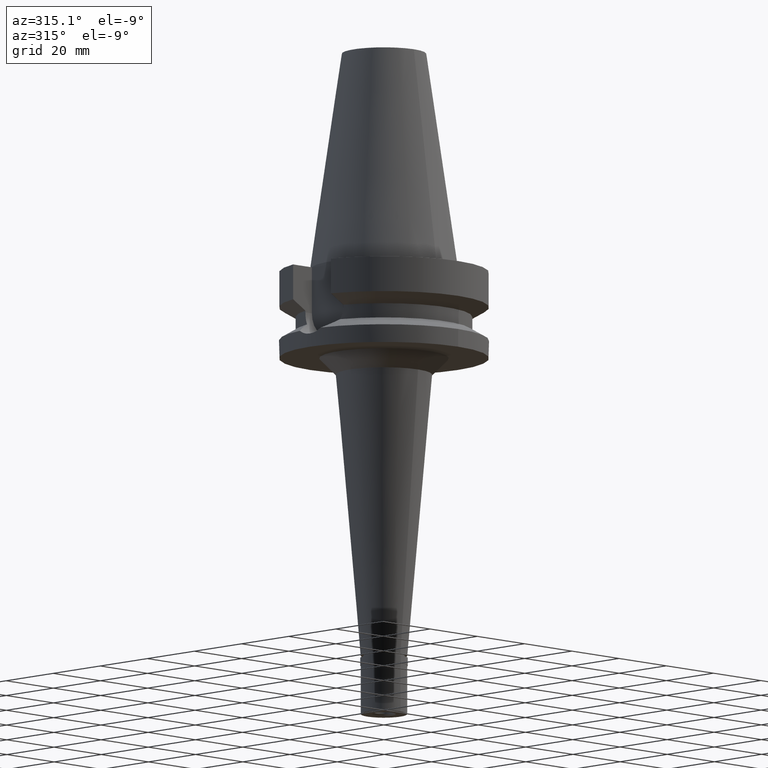
[diagram: clean part render]
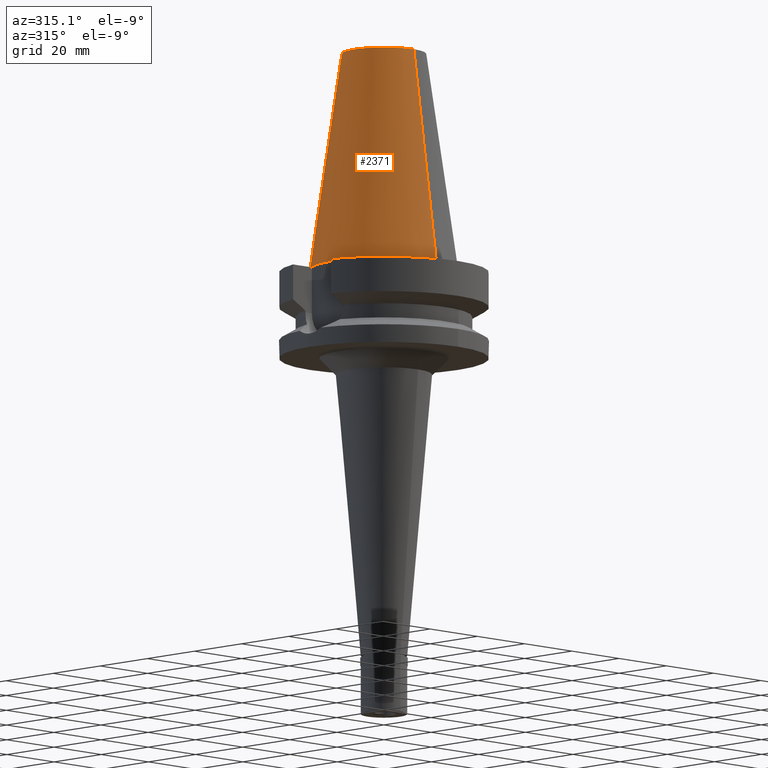
[diagram: same view with one face highlighted and labeled with its STEP entity id]
A machine part, auxiliary view. The second image highlights one B-rep face of the part: STEP entity #2371.
In plain terms, the highlighted conical surface has half-angle 8.297 deg.
Its self-contained STEP definition (entity closure, byte-faithful):
#68 = VERTEX_POINT ( 'NONE', #2409 ) ;
#88 = CARTESIAN_POINT ( 'NONE',  ( 0.0000000000000000000, 1.625106302469000024E-14, 2.842170943039999687E-14 ) ) ;
#233 = AXIS2_PLACEMENT_3D ( 'NONE', #1583, #1347, #2237 ) ;
#272 = CIRCLE ( 'NONE', #1948, 12.68766899429999917 ) ;
#426 = AXIS2_PLACEMENT_3D ( 'NONE', #88, #2583, #1210 ) ;
#460 = DIRECTION ( 'NONE',  ( 0.0000000000000000000, -0.1443043893539925626, -0.9895333461855498891 ) ) ;
#534 = CARTESIAN_POINT ( 'NONE',  ( 0.0000000000000000000, 22.22500000000000142, 1.065814103639999827E-13 ) ) ;
#538 = CARTESIAN_POINT ( 'NONE',  ( 0.0000000000000000000, 12.68766899429999917, 65.40000000000000568 ) ) ;
#724 = EDGE_CURVE ( 'NONE', #2698, #1284, #1984, .T. ) ;
#938 = DIRECTION ( 'NONE',  ( 0.0000000000000000000, -1.000000000000000000, 0.0000000000000000000 ) ) ;
#975 = DIRECTION ( 'NONE',  ( 0.0000000000000000000, 0.1443043893539925626, -0.9895333461855498891 ) ) ;
#996 = CONICAL_SURFACE ( 'NONE', #233, 17.45633449714999941, 0.1448099680379422438 ) ;
#1086 = CIRCLE ( 'NONE', #426, 22.22500000000000142 ) ;
#1146 = ORIENTED_EDGE ( 'NONE', *, *, #1159, .F. ) ;
#1159 = EDGE_CURVE ( 'NONE', #2290, #68, #2035, .T. ) ;
#1210 = DIRECTION ( 'NONE',  ( 0.0000000000000000000, -1.000000000000000000, 0.0000000000000000000 ) ) ;
#1284 = VERTEX_POINT ( 'NONE', #534 ) ;
#1347 = DIRECTION ( 'NONE',  ( 0.0000000000000000000, 0.0000000000000000000, -1.000000000000000000 ) ) ;
#1366 = CARTESIAN_POINT ( 'NONE',  ( 0.0000000000000000000, 1.625106302469000024E-14, 65.40000000000000568 ) ) ;
#1535 = FACE_OUTER_BOUND ( 'NONE', #2084, .T. ) ;
#1583 = CARTESIAN_POINT ( 'NONE',  ( 0.0000000000000000000, 1.625106302469000024E-14, 32.70000000000000284 ) ) ;
#1948 = AXIS2_PLACEMENT_3D ( 'NONE', #1366, #2269, #938 ) ;
#1984 = LINE ( 'NONE', #2561, #2391 ) ;
#2035 = LINE ( 'NONE', #2530, #2488 ) ;
#2066 = EDGE_CURVE ( 'NONE', #2290, #2698, #272, .T. ) ;
#2084 = EDGE_LOOP ( 'NONE', ( #2381, #1146, #2341, #2266 ) ) ;
#2198 = EDGE_CURVE ( 'NONE', #68, #1284, #1086, .T. ) ;
#2237 = DIRECTION ( 'NONE',  ( 0.0000000000000000000, -1.000000000000000000, 0.0000000000000000000 ) ) ;
#2266 = ORIENTED_EDGE ( 'NONE', *, *, #724, .T. ) ;
#2269 = DIRECTION ( 'NONE',  ( 0.0000000000000000000, 0.0000000000000000000, -1.000000000000000000 ) ) ;
#2290 = VERTEX_POINT ( 'NONE', #2617 ) ;
#2341 = ORIENTED_EDGE ( 'NONE', *, *, #2066, .T. ) ;
#2371 = ADVANCED_FACE ( 'NONE', ( #1535 ), #996, .T. ) ;
#2381 = ORIENTED_EDGE ( 'NONE', *, *, #2198, .F. ) ;
#2391 = VECTOR ( 'NONE', #975, 1000.000000000000114 ) ;
#2409 = CARTESIAN_POINT ( 'NONE',  ( 0.0000000000000000000, -22.22500000000000142, 1.065814103639999827E-13 ) ) ;
#2488 = VECTOR ( 'NONE', #460, 1000.000000000000114 ) ;
#2530 = CARTESIAN_POINT ( 'NONE',  ( 0.0000000000000000000, -12.68766899429999917, 65.40000000000000568 ) ) ;
#2561 = CARTESIAN_POINT ( 'NONE',  ( 0.0000000000000000000, 12.68766899429999917, 65.40000000000000568 ) ) ;
#2583 = DIRECTION ( 'NONE',  ( 0.0000000000000000000, 0.0000000000000000000, -1.000000000000000000 ) ) ;
#2617 = CARTESIAN_POINT ( 'NONE',  ( 0.0000000000000000000, -12.68766899429999917, 65.40000000000000568 ) ) ;
#2698 = VERTEX_POINT ( 'NONE', #538 ) ;